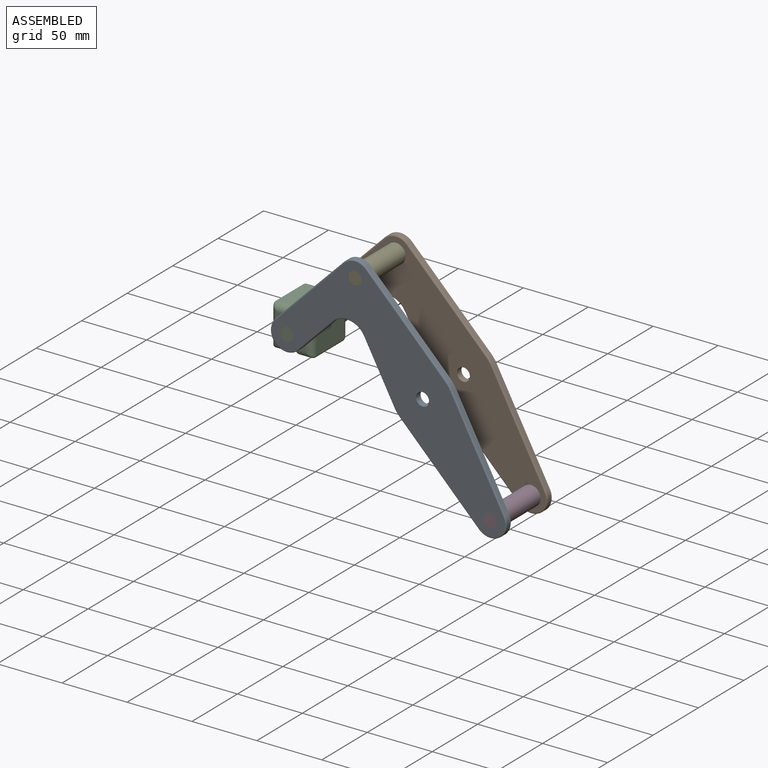
[diagram: assembled view]
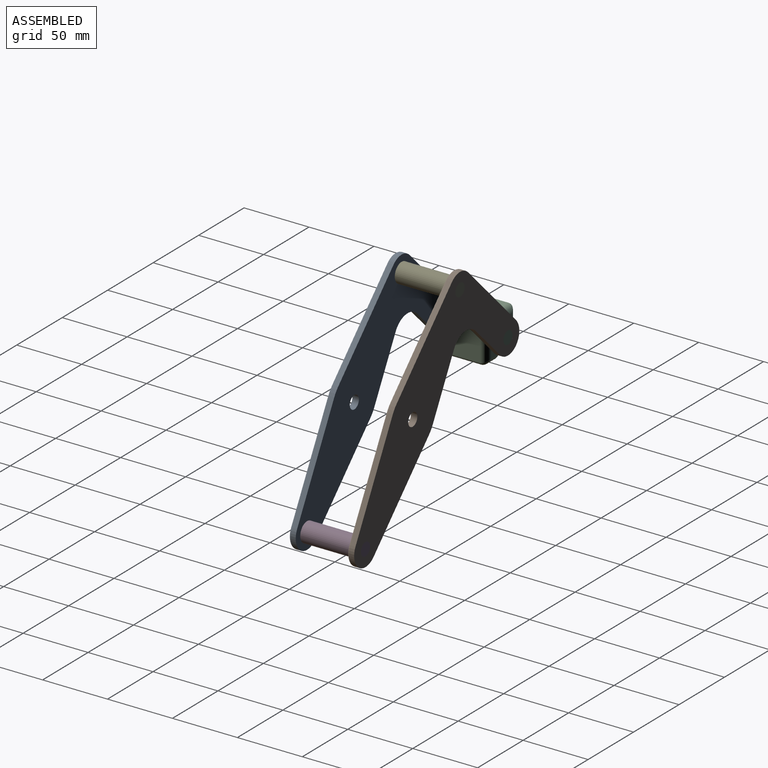
[diagram: assembled view, second angle]
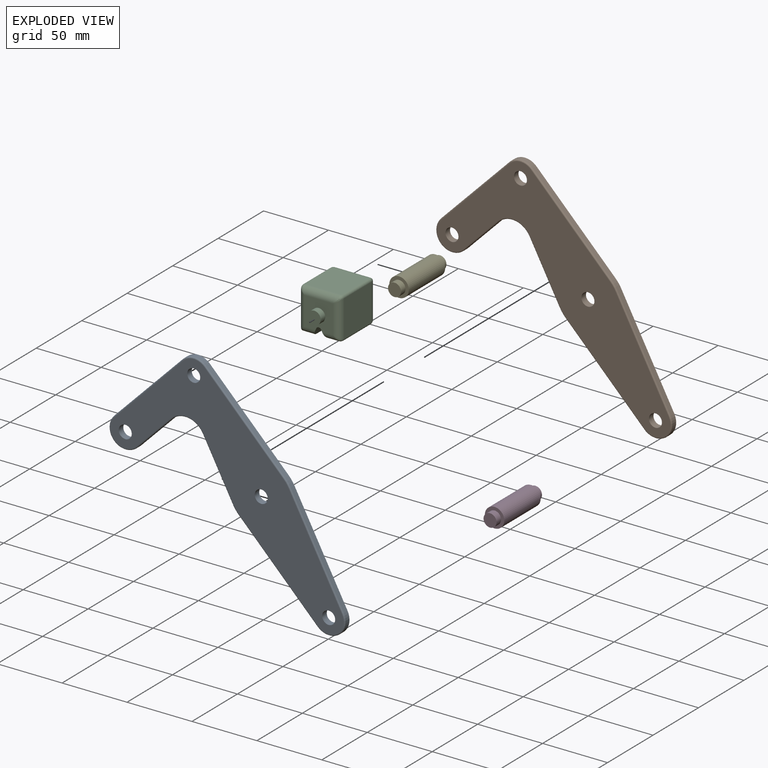
[diagram: exploded view]
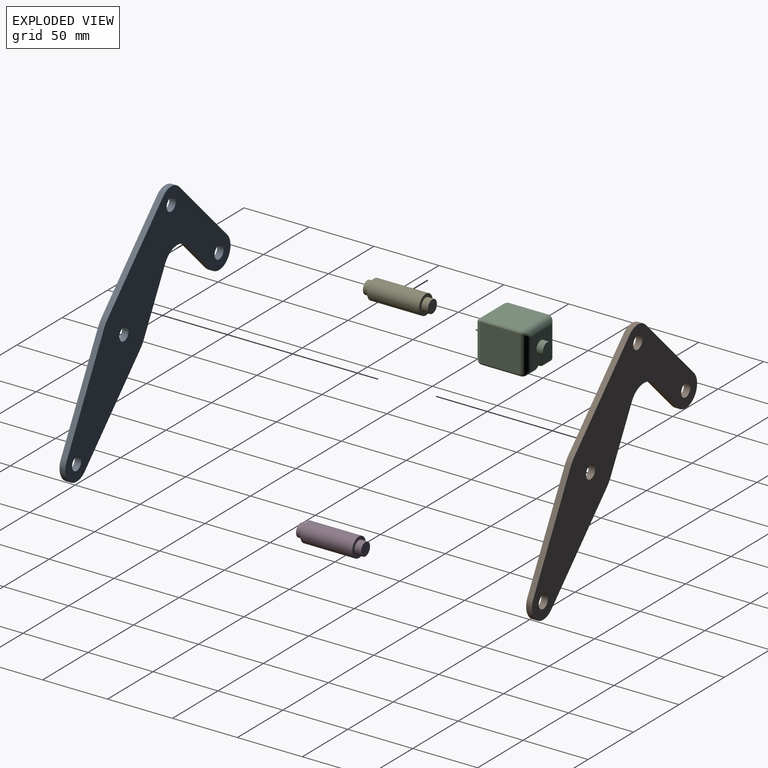
[diagram: exploded view, second angle]
ASSEMBLY  parts=5 mates=3
PART A: 30 faces, bbox 183.7x5x167.8 mm
  f0: plane 43.49x23.35mm, normal (-0.88,0,-0.47), area 197.4mm2, adj f1,f14,f17,f29
  f1: cylinder r=25mm len=5.75mm, axis (0,1,0), area 28.7mm2, adj f0,f2,f17,f28
  f2: plane 61.6x60.87mm, normal (-0.71,0,-0.7), area 346.4mm2, adj f1,f3,f17,f26
  f3: cylinder r=12.5mm len=21.39mm, axis (0,1,0), area 142.7mm2, adj f2,f4,f17,f24
  f4: plane 76.3x40.96mm, normal (0.88,0,0.47), area 346.4mm2, adj f3,f5,f17,f22
  f5: cylinder r=25mm len=5.75mm, axis (0,1,0), area 28.7mm2, adj f4,f6,f17,f20
  f6: plane 61.6x60.87mm, normal (0.71,0,0.7), area 346.4mm2, adj f5,f7,f17,f18
  f7: cylinder r=12.5mm len=17.78mm, axis (0,1,0), area 79.1mm2, adj f6,f8,f17,f19
  f8: plane 53.35x52.71mm, normal (-0.71,0,0.7), area 300mm2, adj f7,f9,f17,f21
  f9: cylinder r=12.5mm len=21.39mm, axis (0,1,0), area 157.1mm2, adj f8,f10,f17,f23
  f10: plane 26.86x26.54mm, normal (0.71,0,-0.7), area 151mm2, adj f9,f14,f17,f25
  f11: cylinder r=5mm len=10mm, axis (0,1,0), area 157.1mm2, adj f16,f17
  f12: cylinder r=5mm len=10mm, axis (0,1,0), area 157.1mm2, adj f16,f17
  f13: cylinder r=5mm len=10mm, axis (0,1,0), area 157.1mm2, adj f16,f17
  f14: cylinder r=15mm len=23.89mm, axis (0,1,0), area 112.2mm2, adj f0,f10,f17,f27
  f15: cylinder r=5mm len=10mm, axis (0,1,0), area 157.1mm2, adj f16,f17
  f16: plane 179.66x163.78mm, normal (0,-1,0), area 8154.2mm2, adj f11,f12,f13,f15,f18,f19,f20,f21
  f17: plane 181.66x165.78mm, normal (0,1,0), area 8710.1mm2, adj f0,f1,f2,f3,f4,f5,f6,f7
  f18: cylinder r=1mm len=62.31mm, axis (0.7,0,-0.71), area 136mm2, adj f6,f16,f19,f20
  f19: torus R=11.5mm, axis (0,-1,0), area 30.2mm2, adj f7,f16,f18,f21
  f20: torus R=24mm, axis (0,-1,0), area 11.1mm2, adj f5,f16,f18,f22
  f21: cylinder r=1mm len=54.05mm, axis (0.7,0,0.71), area 117.8mm2, adj f8,f16,f19,f23
  f22: cylinder r=1mm len=76.78mm, axis (0.47,0,-0.88), area 136mm2, adj f4,f16,f20,f24
  f23: torus R=11.5mm, axis (0,-1,0), area 59.9mm2, adj f9,f16,f21,f25
  f24: torus R=11.5mm, axis (0,-1,0), area 54.4mm2, adj f3,f16,f22,f26
  f25: cylinder r=1mm len=27.56mm, axis (-0.7,0,-0.71), area 59.3mm2, adj f10,f16,f23,f27
  f26: cylinder r=1mm len=62.31mm, axis (-0.7,0,0.71), area 136mm2, adj f2,f16,f24,f28
  f27: torus R=16mm, axis (0,-1,0), area 45.1mm2, adj f14,f16,f25,f29
  f28: torus R=24mm, axis (0,-1,0), area 11.1mm2, adj f1,f16,f26,f29
  f29: cylinder r=1mm len=43.96mm, axis (-0.47,0,0.88), area 77.5mm2, adj f0,f16,f27,f28
PART B: same geometry as A
PART C: 36 faces, bbox 32.1x50x32.1 mm
  f0: plane 40x6.42mm, normal (-0.89,0,-0.45), area 275.2mm2, adj f6,f7,f10,f13,f18,f27
  f1: plane 40x6.42mm, normal (0.89,0,-0.45), area 275.2mm2, adj f2,f7,f10,f13,f26,f35
  f2: plane 30x9.04mm, normal (0,0,-1), area 271.2mm2, adj f1,f14,f26,f35
  f3: plane 30x28.08mm, normal (-1,0,0), area 842.3mm2, adj f14,f15,f24,f33
  f4: plane 30x28.08mm, normal (0,0,1), area 842.3mm2, adj f15,f16,f22,f31
  f5: plane 30x28.08mm, normal (1,0,0), area 842.3mm2, adj f16,f17,f20,f29
  f6: plane 30x9.04mm, normal (0,0,-1), area 271.2mm2, adj f0,f17,f18,f27
  f7: plane 22.08x22.08mm, normal (0,-1,0), area 400mm2, adj f0,f1,f9,f13,f27,f29,f31,f33
  f8: plane 10x10mm, normal (0,-1,0), area 78.5mm2, adj f9
  f9: cylinder r=5mm len=10mm, axis (0,1,0), area 157.1mm2, adj f7,f8
  f10: plane 22.08x22.08mm, normal (0,1,0), area 400mm2, adj f0,f1,f12,f13,f18,f20,f22,f24
  f11: plane 10x10mm, normal (0,1,0), area 78.5mm2, adj f12
  f12: cylinder r=5mm len=10mm, axis (0,-1,0), area 157.1mm2, adj f10,f11
  f13: cylinder r=2mm len=40mm, axis (0,1,0), area 177.1mm2, adj f0,f1,f7,f10
  f14: cylinder r=2mm len=30mm, axis (0,1,0), area 94.2mm2, adj f2,f3,f25,f34
  f15: cylinder r=2mm len=30mm, axis (0,-1,0), area 94.2mm2, adj f3,f4,f23,f32
  f16: cylinder r=2mm len=30mm, axis (0,1,0), area 94.2mm2, adj f4,f5,f21,f30
  f17: cylinder r=2mm len=30mm, axis (0,-1,0), area 94.2mm2, adj f5,f6,f19,f28
  f18: cylinder r=5mm len=11.54mm, axis (-1,0,0), area 69.6mm2, adj f0,f6,f10,f19
  f19: bspline ~5.23x5mm, area 16.7mm2, adj f17,f18,f20
  f20: cylinder r=5mm len=28.08mm, axis (0,0,-1), area 203.4mm2, adj f5,f10,f19,f21
  f21: bspline ~5.23x5mm, area 16.7mm2, adj f16,f20,f22
  f22: cylinder r=5mm len=28.08mm, axis (1,0,0), area 203.4mm2, adj f4,f10,f21,f23
  f23: bspline ~5.23x5mm, area 16.7mm2, adj f15,f22,f24
  f24: cylinder r=5mm len=28.08mm, axis (0,0,1), area 203.4mm2, adj f3,f10,f23,f25
  f25: bspline ~5.23x5mm, area 16.7mm2, adj f14,f24,f26
  f26: cylinder r=5mm len=11.54mm, axis (-1,0,0), area 69.6mm2, adj f1,f2,f10,f25
  f27: cylinder r=5mm len=11.54mm, axis (-1,0,0), area 69.6mm2, adj f0,f6,f7,f28
  f28: bspline ~5.91x5mm, area 16.7mm2, adj f17,f27,f29
  f29: cylinder r=5mm len=28.08mm, axis (0,0,-1), area 203.4mm2, adj f5,f7,f28,f30
  f30: bspline ~5.91x5mm, area 16.7mm2, adj f16,f29,f31
  f31: cylinder r=5mm len=28.08mm, axis (1,0,0), area 203.4mm2, adj f4,f7,f30,f32
  f32: bspline ~5.91x5mm, area 16.7mm2, adj f15,f31,f33
  f33: cylinder r=5mm len=28.08mm, axis (0,0,1), area 203.4mm2, adj f3,f7,f32,f34
  f34: bspline ~5.91x5mm, area 16.7mm2, adj f14,f33,f35
  f35: cylinder r=5mm len=11.54mm, axis (-1,0,0), area 69.6mm2, adj f1,f2,f7,f34
PART D: 7 faces, bbox 15x50x15 mm
  f0: cylinder r=7.5mm len=40mm, axis (0,-1,0), area 1885mm2, adj f2,f5
  f1: cylinder r=5mm len=10mm, axis (0,1,0), area 157.1mm2, adj f2,f3
  f2: plane 15x15mm, normal (0,-1,0), area 98.2mm2, adj f0,f1
  f3: plane 10x10mm, normal (0,-1,0), area 78.5mm2, adj f1
  f4: cylinder r=5mm len=10mm, axis (0,-1,0), area 157.1mm2, adj f5,f6
  f5: plane 15x15mm, normal (0,1,0), area 98.2mm2, adj f0,f4
  f6: plane 10x10mm, normal (0,1,0), area 78.5mm2, adj f4
PART E: same geometry as D
PLACE A t=(0,-20,0)mm fixed
PLACE B t=(0,25,0)mm
PLACE C t=(0,-20,0)mm
PLACE D t=(103.95,-20,-140.78)mm
PLACE E t=(0,-20,0)mm
MATE fastened B.f7 <-> E.f0  axis (0,1,0) through (-51.98,25,70.39)mm
MATE fastened A.f3 <-> D.f0  axis (0,-1,0) through (51.98,-25,-70.39)mm
MATE revolute A.f9 <-> C.f9  axis (0,-1,0) through (-104.69,-25,17.04)mm
